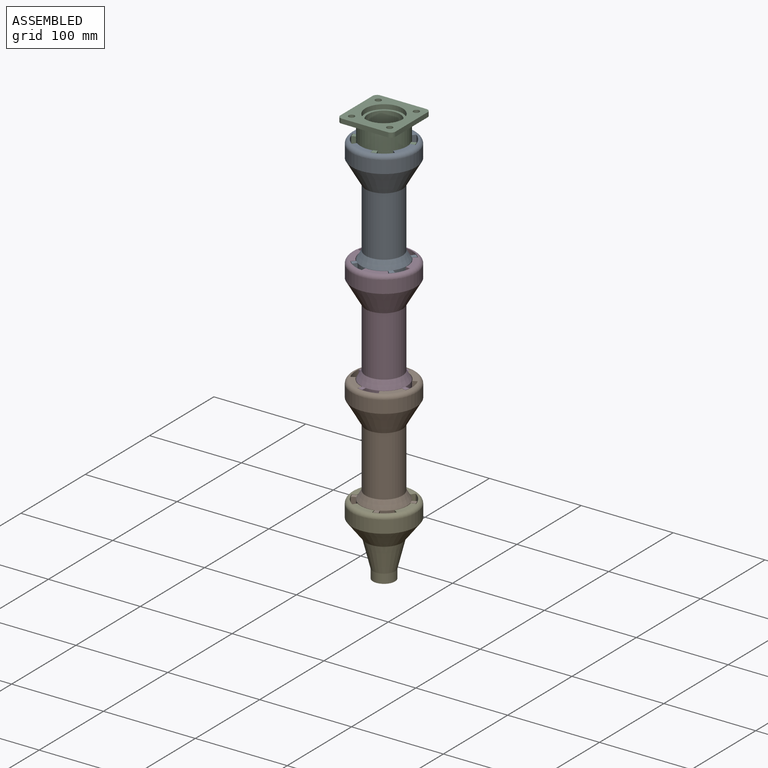
[diagram: assembled view]
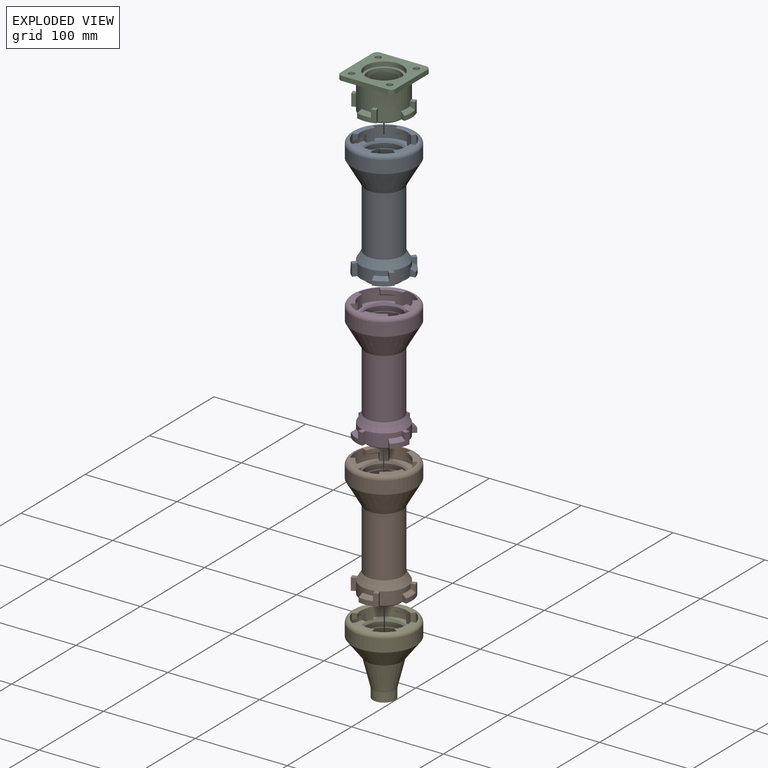
[diagram: exploded view]
GUIDED TOUR — MATED ASSEMBLY WITH SUBASSEMBLIES (Onshape document 5f03aaca9e69282ad3aea920, AutoMate assembly 5f03aaca9e69282ad3aea920_49f700d59b72830fd6bc51a1_0558d55363b534b056cfceb4_default)

This assembly has 13 component occurrences arranged in 5 top-level units: 0 individual components plus 5 subassemblies (S0, S1, S2, S3, S4). The tour has two levels: first the top level, where each subassembly is treated as one rigid unit; then each subassembly is toured internally in its own section (nesting deeper than one subassembly level is flattened into its subassembly's section).

Components are labeled P0..P12 across the whole record; subassembly units are labeled S0..S4. A mate is a constraint between two units; its type names the relative motion it leaves free:
  FASTENED — locks the two components together rigidly (no relative motion),
  REVOLUTE — leaves rotation about the listed axis free (a hinge).
Axis/direction vectors are unit vectors and 'through' points are millimeter coordinates, both in the assembly's world frame.

TOP-LEVEL MATES (between units; each subassembly's internal mates are listed in its own section)
  1. REVOLUTE "Revolute 2": S3 <-> S0, axis (0.000, 0.000, 1.000) through (-103.67, -44.20, 37.76) mm
  2. REVOLUTE "Revolute 3": S1 <-> S3, axis (0.000, 0.000, 1.000) through (-103.67, -44.20, -80.24) mm
  3. REVOLUTE "Revolute 4": S4 <-> S1, axis (0.000, 0.000, 1.000) through (-103.67, -44.20, -198.24) mm
  4. REVOLUTE "Revolute 1": S0 <-> S2, axis (0.000, 0.000, 1.000) through (-103.67, -44.20, 155.76) mm

TOP-LEVEL ASSEMBLY ORDER
  1. S0 — the base component [order heuristic]
  2. S2 [order heuristic]
  3. S3 [order heuristic]
  4. S1 [order heuristic]
  5. S4 [order heuristic]
Order-tag legend:
  [order heuristic] — this assembly is geometrically interlocked (no collision-free removal order exists), so components are listed in mate-graph order; insertion feasibility is not verified.

Of the 13 component occurrences, 13 carry the full construction recipe — the FeatureScript program that regenerates the part's solid from scratch; the rest are supplied as boundary geometry only. Each toured unit is shown spotlighted twice — assembled, then exploded with a leader line back to its socket (green = recipe-attached component, orange = geometry-only, blue = subassembly unit; the rest desaturated gray).
NOTE — document 3 of 3 of this assembly tour. The two overview renders and the header above are repeated from document 1; the component sections below continue where the previous document stopped.
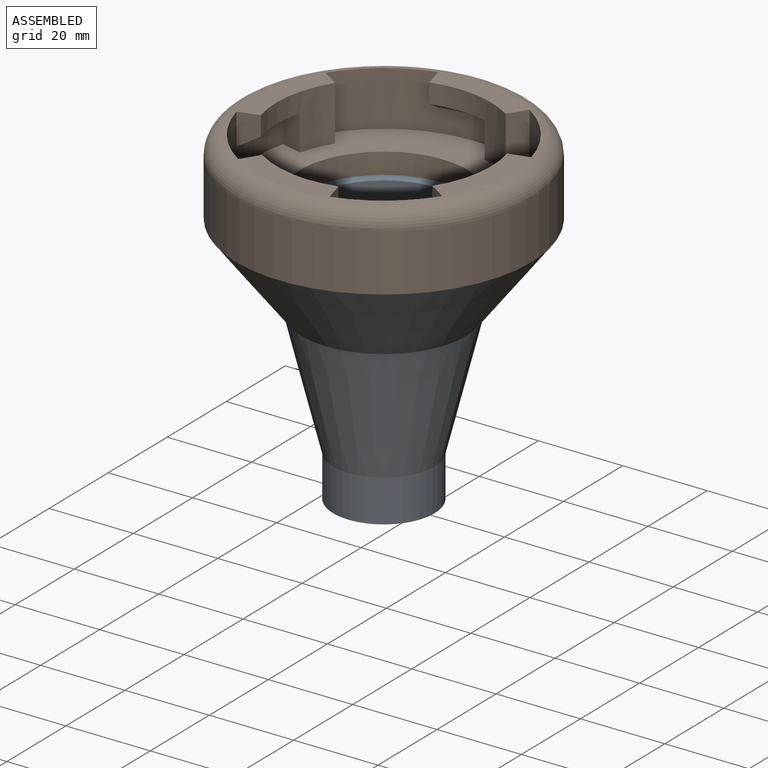
[diagram: subassembly S4 — assembled view]
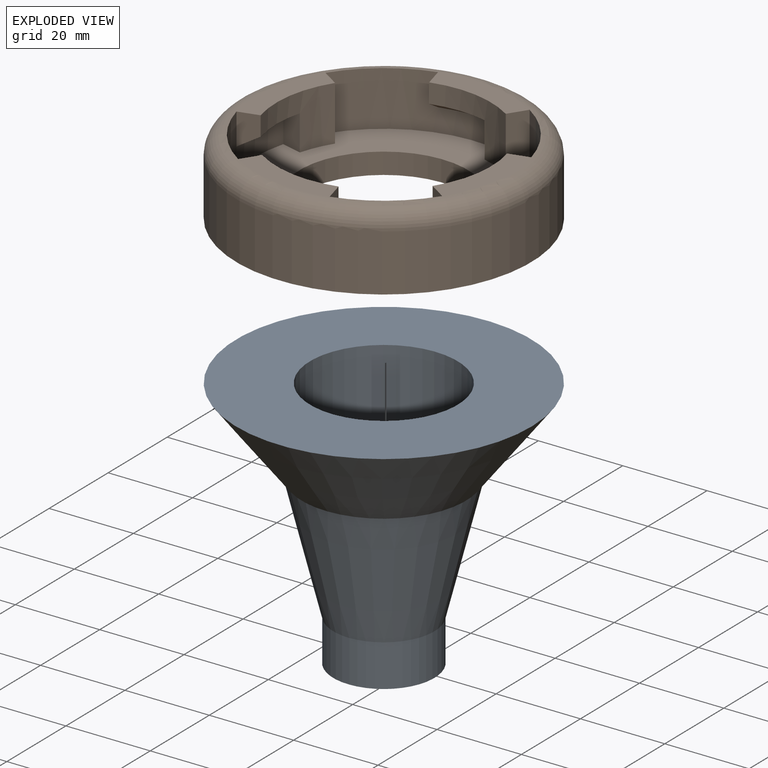
[diagram: subassembly S4 — exploded view]
SUBASSEMBLY S4 TOUR — 2 components, shown here in isolation at its own camera.

INTERNAL MATES
  1. FASTENED "Fastened 1": P11 <-> P8, direction (0.000, 0.000, -1.000) through (-103.67, -44.20, -203.24) mm
  2. FASTENED "Fastened 1": P11 <-> P8, direction (0.000, 0.000, -1.000) through (-103.67, -44.20, -203.24) mm

ASSEMBLY ORDER (within the subassembly)
  1. P11 — the base component [order verified]
  2. P8 [order verified]
Order-tag legend:
  [order verified] — this step's position reverses a verified removal order: the component was checked to insert without passing through the ones already placed.
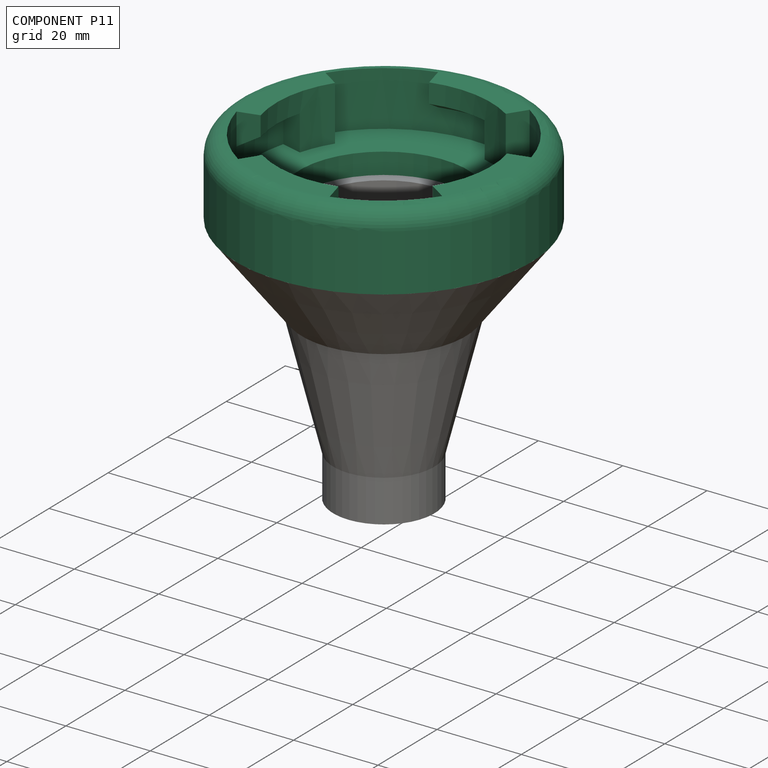
[diagram: component P11 — assembled]
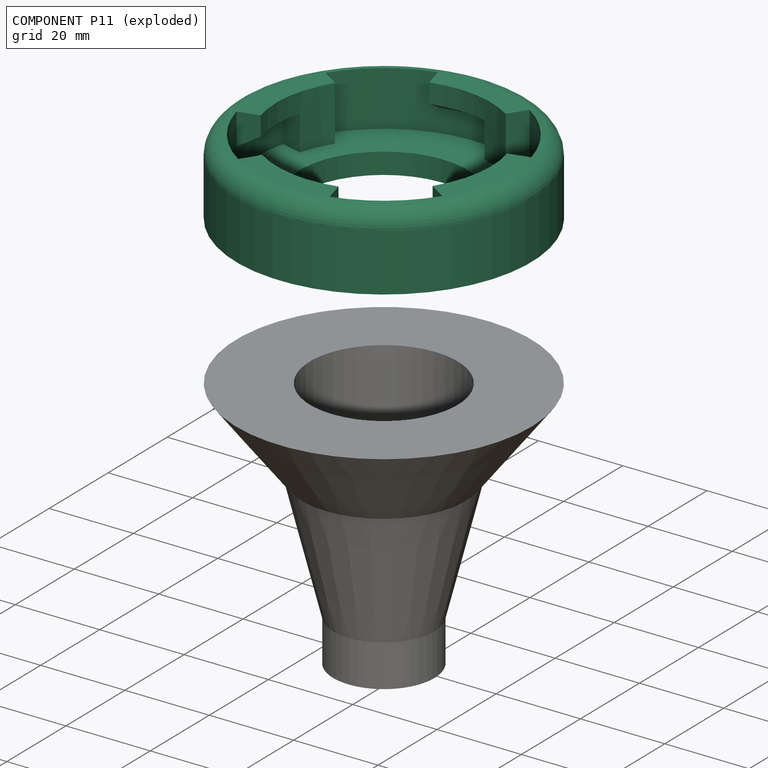
[diagram: component P11 — exploded]
COMPONENT P11 — recipe-attached (CADFS 00920902, mesh-verified: the recipe's output STEP matches this component's geometry to below the mesh-comparison resolution (tessellation chordal tolerance ~0.151 mm)).
Held by: FASTENED mate "Fastened 1" to P8; FASTENED mate "Fastened 1" to P8.
Construction recipe (FeatureScript — the CAD program that rebuilds this solid; sketch coordinates are in the units given by the * unit suffixes, e.g. mm):

FeatureScript 1511;
import(path : "onshape/std/geometry.fs", version : "1511.0");
import(path : "onshape/std/common.fs", version : "1511.0");
const mm = millimeter;
const VERTEX = EntityType.VERTEX;
const EDGE = EntityType.EDGE;
const FACE = EntityType.FACE;
const BODY = EntityType.BODY;
function v(x, y){return vector(x, y);}
function OD(order){return orderDisambiguation(order);}
function OSD(set){return originalSetDisambiguation(set);}
function TD(topology){return topologyDisambiguation(topology);}
function TDD(query){return trueDependencyDisambiguation(query);}
function sQuery(a, b, c) {return sketchEntityQuery(a, b, c);}

annotation { "Feature Type Name" : "Feature", "Feature Type Description" : "" }
export const myFeature = defineFeature(function(context is Context, id is Id, definition is map)
    precondition{}
    {
        {
            var Q0;
            Q0=qCreatedBy(makeId("Front.planeOp"),FACE);
            var sketch = newSketch(context, id + "F0", { "sketchPlane" : qUnion([Q0])});
            skLineSegment(sketch, "E0", {"start": v(17.5, 0) * mm, "end": v(17.5, 2) * mm});
            skLineSegment(sketch, "E1", {"start": v(17.5, 2) * mm, "end": v(20, 2) * mm});
            skLineSegment(sketch, "E2", {"start": v(20, 2) * mm, "end": v(20, 7) * mm});
            skLineSegment(sketch, "E3", {"start": v(20, 7) * mm, "end": v(30.5, 7) * mm});
            skLineSegment(sketch, "E4", {"start": v(30.5, 7) * mm, "end": v(30.5, 12.5) * mm});
            skLineSegment(sketch, "E5", {"start": v(30.5, 12.5) * mm, "end": v(25.5, 15.39) * mm});
            skLineSegment(sketch, "E6", {"start": v(25.5, 15.39) * mm, "end": v(25.5, 20) * mm});
            skLineSegment(sketch, "E7", {"start": v(25.5, 20) * mm, "end": v(35, 20) * mm});
            skLineSegment(sketch, "E8", {"start": v(35, 20) * mm, "end": v(35, 0) * mm});
            skLineSegment(sketch, "E9", {"start": v(35, 0) * mm, "end": v(17.5, 0) * mm});
            skSolve(sketch);
        }
        {
            var Q0;
            Q0=qCreatedBy(makeId("Front.planeOp"),FACE);
            var sketch = newSketch(context, id + "F1", { "sketchPlane" : qUnion([Q0])});
            skLineSegment(sketch, "E10", {"start": v(0, 47.14) * mm, "end": v(0, -19.48) * mm});
            skSolve(sketch);
        }
        {
            var Q0;
            Q0=makeQuery(id+"F0.imprint","IMPRINT",FACE,{"disambiguationData":[TD([[makeQuery(id+"F0.imprint","IMPRINT",EDGE,{"derivedFrom":sQuery(id+"F0.wireOp",EDGE,"E0")}),-1.0]])]});
            var Q1;
            Q1=sQuery(id+"F1.wireOp",EDGE,"E10");
            revolve(context, id + "F2", {"surfaceOperationType" : NewSurfaceOperationType.NEW, "entities" : qUnion([Q0]), "axis" : qUnion([Q1]), "revolveType" : RevolveType.FULL});
        }
        {
            var Q0;
            Q0=qCreatedBy(makeId("Top.planeOp"),FACE);
            var sketch = newSketch(context, id + "F3", { "sketchPlane" : qUnion([Q0])});
            skLineSegment(sketch, "E11", {"start": v(25.5, 0) * mm, "end": v(35, 0) * mm});
            skLineSegment(sketch, "E12", {"start": v(24.25, 7.88) * mm, "end": v(33.29, 10.82) * mm});
            skArc(sketch, "E13", {"start": v(25.5, 0) * mm, "mid": v(25.19, 3.99) * mm, "end": v(24.25, 7.88) * mm});
            skArc(sketch, "E14", {"start": v(35, 0) * mm, "mid": v(34.57, 5.48) * mm, "end": v(33.29, 10.82) * mm});
            skArc(sketch, "E15.1.0", {"start": v(0, 35) * mm, "mid": v(-5.48, 34.57) * mm, "end": v(-10.82, 33.29) * mm});
            skArc(sketch, "E15.1.1", {"start": v(0, 25.5) * mm, "mid": v(-3.99, 25.19) * mm, "end": v(-7.88, 24.25) * mm});
            skLineSegment(sketch, "E15.1.2", {"start": v(-7.88, 24.25) * mm, "end": v(-10.82, 33.29) * mm});
            skLineSegment(sketch, "E15.1.3", {"start": v(0, 25.5) * mm, "end": v(0, 35) * mm});
            skArc(sketch, "E15.2.0", {"start": v(-35, 0) * mm, "mid": v(-34.57, -5.48) * mm, "end": v(-33.29, -10.82) * mm});
            skArc(sketch, "E15.2.1", {"start": v(-25.5, 0) * mm, "mid": v(-25.19, -3.99) * mm, "end": v(-24.25, -7.88) * mm});
            skLineSegment(sketch, "E15.2.2", {"start": v(-24.25, -7.88) * mm, "end": v(-33.29, -10.82) * mm});
            skLineSegment(sketch, "E15.2.3", {"start": v(-25.5, 0) * mm, "end": v(-35, 0) * mm});
            skArc(sketch, "E15.3.0", {"start": v(0, -35) * mm, "mid": v(5.48, -34.57) * mm, "end": v(10.82, -33.29) * mm});
            skArc(sketch, "E15.3.1", {"start": v(0, -25.5) * mm, "mid": v(3.99, -25.19) * mm, "end": v(7.88, -24.25) * mm});
            skLineSegment(sketch, "E15.3.2", {"start": v(7.88, -24.25) * mm, "end": v(10.82, -33.29) * mm});
            skLineSegment(sketch, "E15.3.3", {"start": v(0, -25.5) * mm, "end": v(0, -35) * mm});
            skSolve(sketch);
        }
        {
            var Q0;
            Q0 = qSketchRegion(id + "F3", true);
            var Q1;
            Q1=makeQuery(id+"F2.opRevolve","SWEPT_FACE",FACE,{"disambiguationData":[OSD([sQuery(id+"F0.wireOp",EDGE,"E7")])]});
            extrude(context, id + "F4", {"entities" : qUnion([Q0]), "operationType" : NewBodyOperationType.ADD, "endBound" : BoundingType.UP_TO_SURFACE, "depth" : 25 * mm, "endBoundEntityFace" : qUnion([Q1]), "offsetDistance" : 25 * mm});
        }
        {
            var Q0;
            Q0=qCreatedBy(makeId("Top.planeOp"),FACE);
            var sketch = newSketch(context, id + "F5", { "sketchPlane" : qUnion([Q0])});
            skLineSegment(sketch, "E16", {"start": v(0, 25.5) * mm, "end": v(0, 30.5) * mm});
            skLineSegment(sketch, "E17", {"start": v(17.06, 18.95) * mm, "end": v(20.4, 22.67) * mm});
            skArc(sketch, "E18", {"start": v(17.06, 18.95) * mm, "mid": v(9.14, 23.8) * mm, "end": v(0, 25.5) * mm});
            skArc(sketch, "E19", {"start": v(20.4, 22.67) * mm, "mid": v(10.93, 28.47) * mm, "end": v(0, 30.5) * mm});
            skArc(sketch, "E20.1.0", {"start": v(-18.95, 17.06) * mm, "mid": v(-23.8, 9.14) * mm, "end": v(-25.5, 0) * mm});
            skArc(sketch, "E20.1.1", {"start": v(-22.67, 20.4) * mm, "mid": v(-28.47, 10.93) * mm, "end": v(-30.5, 0) * mm});
            skLineSegment(sketch, "E20.1.2", {"start": v(-18.95, 17.06) * mm, "end": v(-22.67, 20.4) * mm});
            skLineSegment(sketch, "E20.1.3", {"start": v(-25.5, 0) * mm, "end": v(-30.5, 0) * mm});
            skArc(sketch, "E20.2.0", {"start": v(-17.06, -18.95) * mm, "mid": v(-9.14, -23.8) * mm, "end": v(0, -25.5) * mm});
            skArc(sketch, "E20.2.1", {"start": v(-20.4, -22.67) * mm, "mid": v(-10.93, -28.47) * mm, "end": v(0, -30.5) * mm});
            skLineSegment(sketch, "E20.2.2", {"start": v(-17.06, -18.95) * mm, "end": v(-20.4, -22.67) * mm});
            skLineSegment(sketch, "E20.2.3", {"start": v(0, -25.5) * mm, "end": v(0, -30.5) * mm});
            skArc(sketch, "E20.3.0", {"start": v(18.95, -17.06) * mm, "mid": v(23.8, -9.14) * mm, "end": v(25.5, 0) * mm});
            skArc(sketch, "E20.3.1", {"start": v(22.67, -20.4) * mm, "mid": v(28.47, -10.93) * mm, "end": v(30.5, 0) * mm});
            skLineSegment(sketch, "E20.3.2", {"start": v(18.95, -17.06) * mm, "end": v(22.67, -20.4) * mm});
            skLineSegment(sketch, "E20.3.3", {"start": v(25.5, 0) * mm, "end": v(30.5, 0) * mm});
            skSolve(sketch);
        }
        {
            var Q0;
            Q0 = qSketchRegion(id + "F5", true);
            var Q1;
            Q1=makeQuery(id+"F2.opRevolve","SWEPT_FACE",FACE,{"disambiguationData":[OSD([sQuery(id+"F0.wireOp",EDGE,"E7")])]});
            var Q2;
            Q2=makeQuery(id+"F2.opRevolve","SWEPT_FACE",FACE,{"disambiguationData":[OSD([sQuery(id+"F0.wireOp",EDGE,"E3")])]});
            extrude(context, id + "F6", {"entities" : qUnion([Q0]), "operationType" : NewBodyOperationType.REMOVE, "endBound" : BoundingType.UP_TO_SURFACE, "depth" : 25 * mm, "endBoundEntityFace" : qUnion([Q1]), "offsetDistance" : 25 * mm, "hasSecondDirection" : true, "secondDirectionBound" : SecondDirectionBoundingType.UP_TO_SURFACE, "secondDirectionOppositeDirection" : false, "secondDirectionDepth" : 25 * mm, "secondDirectionBoundEntityFace" : qUnion([Q2])});
        }
        {
            var Q0;
            Q0=makeQuery(id+"F2.opRevolve","SWEPT_FACE",FACE,{"disambiguationData":[OSD([sQuery(id+"F0.wireOp",EDGE,"E9")])]});
            var sketch = newSketch(context, id + "F7", { "sketchPlane" : qUnion([Q0])});
            skCircle(sketch, "E21", {"center": v(0, 0) * mm, "radius": 35 * mm});
            skSolve(sketch);
        }
        {
            var Q0;
            Q0 = qSketchRegion(id + "F7", true);
            extrude(context, id + "F8", {"entities" : qUnion([Q0]), "operationType" : NewBodyOperationType.REMOVE, "oppositeDirection" : true, "depth" : 2 * mm, "offsetDistance" : 25 * mm});
        }
        {
            var Q0;
            Q0=makeQuery(id+"F2.opRevolve","SWEPT_EDGE",EDGE,{"disambiguationData":[OSD([sQuery(id+"F0.wireOp",EDGE,"E7"),sQuery(id+"F0.wireOp",EDGE,"E8")])]});
            fillet(context, id + "F9", {"entities" : qUnion([Q0]), "radius" : 4.5 * mm, "tangentPropagation" : true, "allowEdgeOverflow" : false});
        }
    });
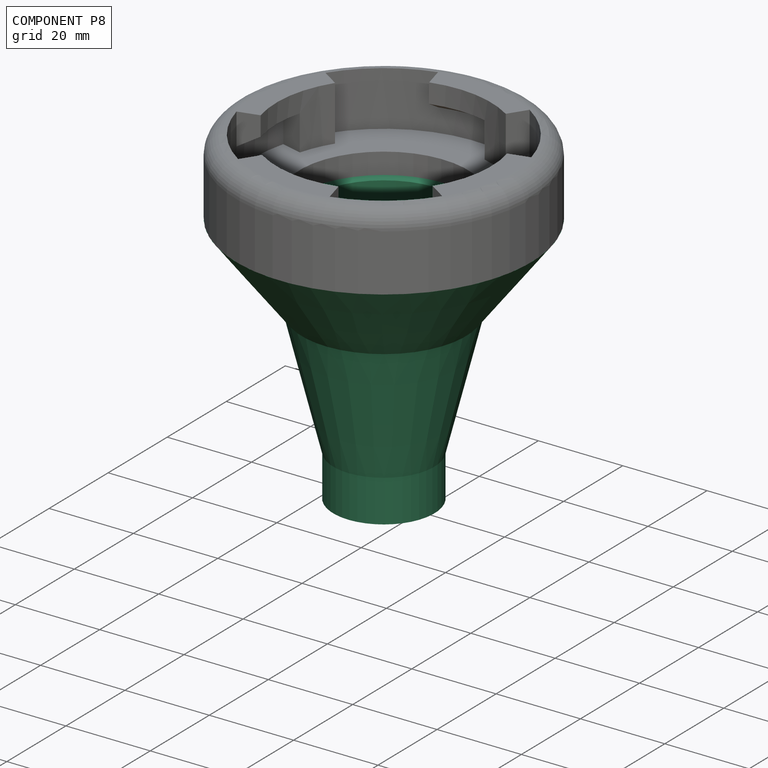
[diagram: component P8 — assembled]
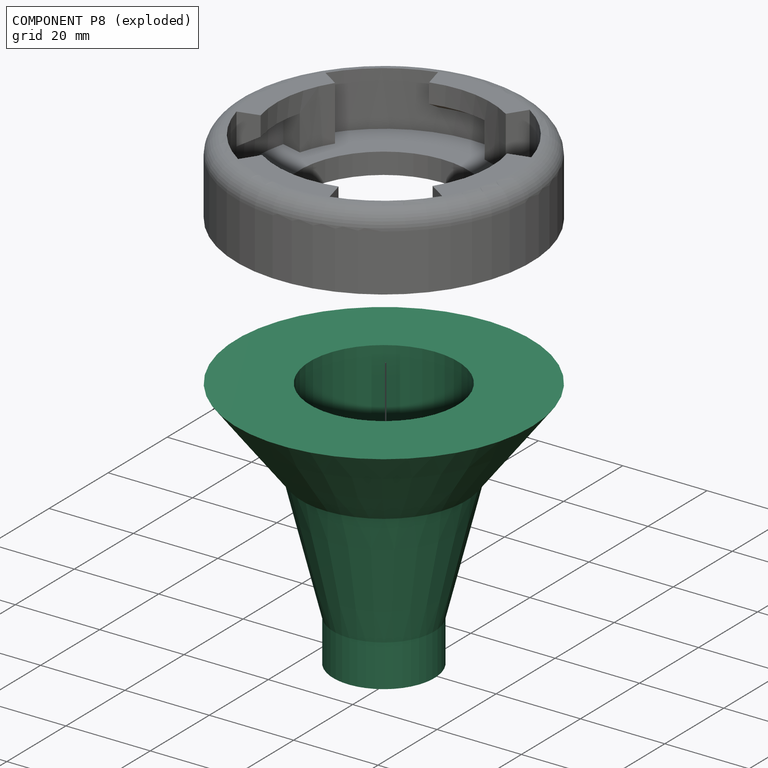
[diagram: component P8 — exploded]
COMPONENT P8 — recipe-attached (CADFS 00920903, mesh-verified: the recipe's output STEP matches this component's geometry to below the mesh-comparison resolution (tessellation chordal tolerance ~0.174 mm)).
Held by: FASTENED mate "Fastened 1" to P11; FASTENED mate "Fastened 1" to P11.
Construction recipe (FeatureScript — the CAD program that rebuilds this solid; sketch coordinates are in the units given by the * unit suffixes, e.g. mm):

FeatureScript 1511;
import(path : "onshape/std/geometry.fs", version : "1511.0");
import(path : "onshape/std/common.fs", version : "1511.0");
const mm = millimeter;
const VERTEX = EntityType.VERTEX;
const EDGE = EntityType.EDGE;
const FACE = EntityType.FACE;
const BODY = EntityType.BODY;
function v(x, y){return vector(x, y);}
function OD(order){return orderDisambiguation(order);}
function OSD(set){return originalSetDisambiguation(set);}
function TD(topology){return topologyDisambiguation(topology);}
function TDD(query){return trueDependencyDisambiguation(query);}
function sQuery(a, b, c) {return sketchEntityQuery(a, b, c);}

annotation { "Feature Type Name" : "Feature", "Feature Type Description" : "" }
export const myFeature = defineFeature(function(context is Context, id is Id, definition is map)
    precondition{}
    {
        {
            var Q0;
            Q0=qCreatedBy(makeId("Front.planeOp"),FACE);
            var sketch = newSketch(context, id + "F0", { "sketchPlane" : qUnion([Q0])});
            skLineSegment(sketch, "E0", {"start": v(0, 57.79) * mm, "end": v(0, -44.66) * mm});
            skSolve(sketch);
        }
        {
            var Q0;
            Q0=qCreatedBy(makeId("Front.planeOp"),FACE);
            var sketch = newSketch(context, id + "F1", { "sketchPlane" : qUnion([Q0])});
            skLineSegment(sketch, "E1", {"start": v(10, 10.25) * mm, "end": v(10, 0) * mm});
            skLineSegment(sketch, "E2", {"start": v(10, 0) * mm, "end": v(12, 0) * mm});
            skLineSegment(sketch, "E3", {"start": v(12, 0) * mm, "end": v(12, 10) * mm});
            skLineSegment(sketch, "E4", {"start": v(12, 10) * mm, "end": v(19.5, 40) * mm});
            skLineSegment(sketch, "E5", {"start": v(19.5, 40) * mm, "end": v(19.5, 60) * mm, "construction": true});
            skLineSegment(sketch, "E6", {"start": v(19.5, 60) * mm, "end": v(17.5, 60) * mm});
            skLineSegment(sketch, "E7", {"start": v(17.5, 60) * mm, "end": v(17.5, 40.25) * mm});
            skLineSegment(sketch, "E8", {"start": v(17.5, 40.25) * mm, "end": v(10, 10.25) * mm});
            skLineSegment(sketch, "E9", {"start": v(19.5, 60) * mm, "end": v(35, 60) * mm});
            skLineSegment(sketch, "E10", {"start": v(35, 60) * mm, "end": v(19.5, 40) * mm});
            skSolve(sketch);
        }
        {
            var Q0;
            Q0=makeQuery(id+"F1.imprint","IMPRINT",FACE,{"disambiguationData":[TD([[makeQuery(id+"F1.imprint","IMPRINT",EDGE,{"derivedFrom":sQuery(id+"F1.wireOp",EDGE,"E1")}),1.0]])]});
            var Q1;
            Q1=sQuery(id+"F0.wireOp",EDGE,"E0");
            revolve(context, id + "F2", {"surfaceOperationType" : NewSurfaceOperationType.NEW, "entities" : qUnion([Q0]), "axis" : qUnion([Q1]), "revolveType" : RevolveType.FULL});
        }
    });
PROVENANCE & LICENSES
Assembly (occurrences, transforms, mates, per-part STEP geometry): AutoMate dataset, Zenodo record 7776208, CC0.
Construction recipes: CADFS (HuggingFace VladPyatov/CADFS, CC-BY-4.0, layered over the ABC dataset), FeatureScript reconstruction programs keyed by ABC model id.
Join: ABC meta listings map ABC model id -> Onshape documentId; within a shared document, parts are matched by geometric signature (bounding-box dims + volume at 0.1% relative tolerance, exact B-rep face/solid counts).
Verification: 13 of this assembly's 13 components carry a recipe attachment, and every attachment is mesh-verified: the CADFS STEP and the AutoMate member STEP were compared as meshes in their shared local frame (symmetric sampled-point-to-mesh distance); worst across the 13 attachments: below the mesh-comparison resolution (tessellation chordal tolerance ~0.211 mm) on a 141 mm part.
Renders: orthographic iso camera (az 35 / el 25); the floor grid conveys scale (grid pitch printed in each image; no ruler). In the exploded view each component is displaced by its stored offset vector: the offsets alone carry the explosion direction (mate normal/axis signs are not orientation cues and do not encode it), and separation distances are assigned per mate-chain, not proportionally to assembly-order depth.
